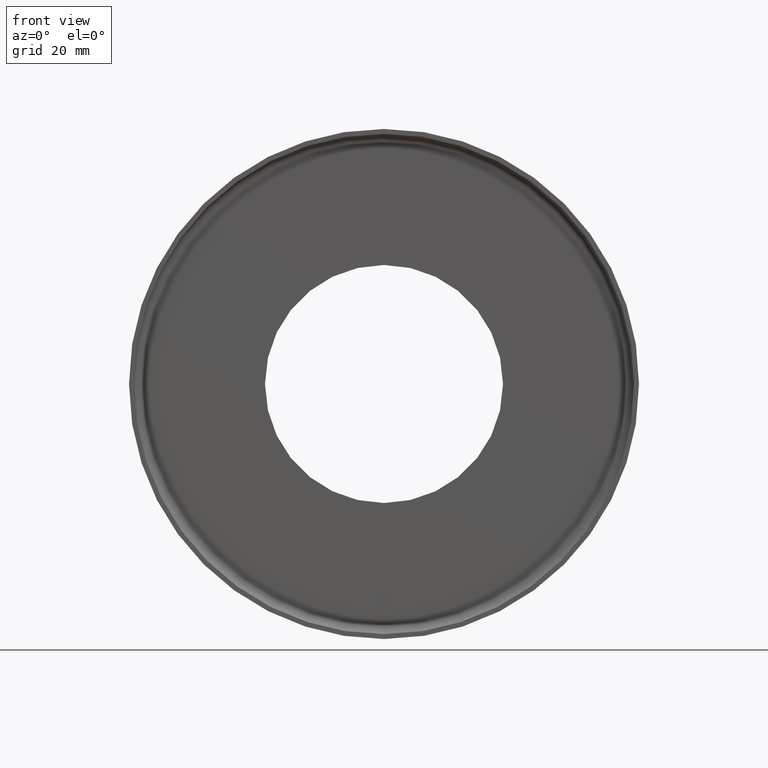
[diagram: clean part render]
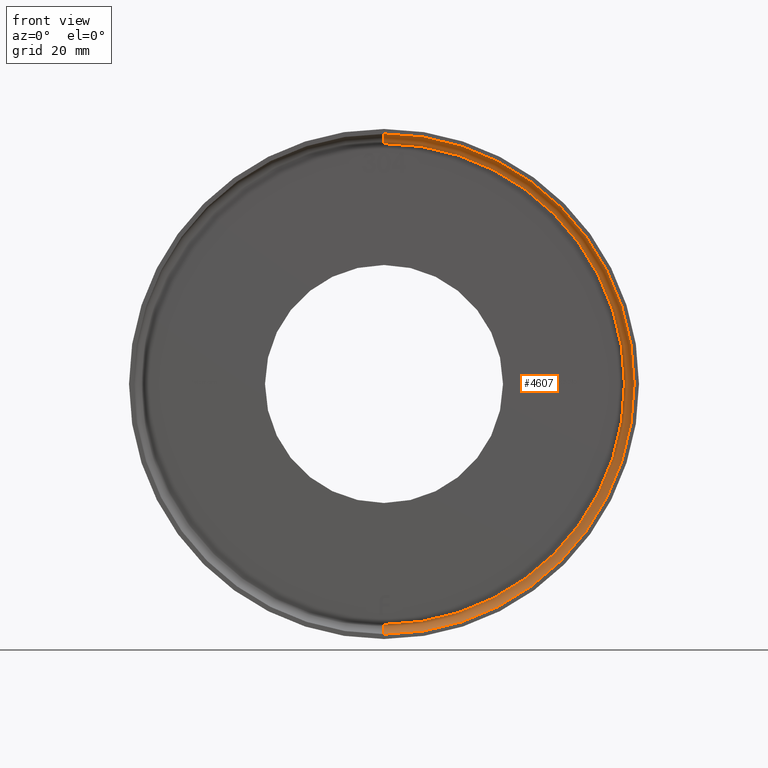
[diagram: same view with one face highlighted and labeled with its STEP entity id]
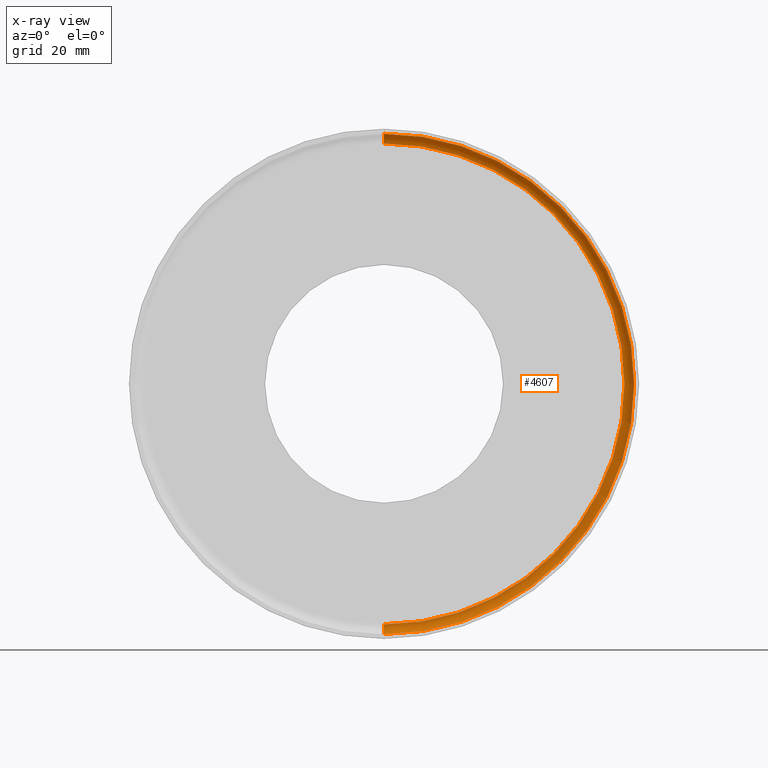
[diagram: x-ray of the same camera — body ghosted, the highlighted face saturated]
A machine part, front view. The second image highlights one B-rep face of the part: STEP entity #4607.
The next image is the same camera in x-ray: the body ghosted, the highlighted face saturated — about 0% of this face is hidden behind the body in this view.
In plain terms, the highlighted toroidal blend (fillet) surface has major radius 49.5 mm and minor (blend) radius 2 mm.
Its self-contained STEP definition (entity closure, byte-faithful):
#1361 = CARTESIAN_POINT ( 'NONE',  ( 0.000000000000000000, 22.00000000000000355, -51.50000000000000711 ) ) ;
#1422 = CARTESIAN_POINT ( 'NONE',  ( 0.000000000000000000, 22.00000000000000355, -49.50000000000000000 ) ) ;
#1424 = CARTESIAN_POINT ( 'NONE',  ( 6.062001655779398511E-15, 22.00000000000000355, 49.50000000000000000 ) ) ;
#2255 = DIRECTION ( 'NONE',  ( -0.000000000000000000, -1.000000000000000000, -0.000000000000000000 ) ) ;
#2647 = ORIENTED_EDGE ( 'NONE', *, *, #12802, .T. ) ;
#2708 = CARTESIAN_POINT ( 'NONE',  ( 6.306931015608869596E-15, 22.00000000000000355, 51.50000000000000711 ) ) ;
#2738 = EDGE_LOOP ( 'NONE', ( #7969, #12139, #10090, #2647 ) ) ;
#2918 = AXIS2_PLACEMENT_3D ( 'NONE', #1422, #6487, #10335 ) ;
#3621 = DIRECTION ( 'NONE',  ( 0.000000000000000000, 0.000000000000000000, -1.000000000000000000 ) ) ;
#4348 = CIRCLE ( 'NONE', #12000, 2.000000000000001776 ) ;
#4607 = ADVANCED_FACE ( 'NONE', ( #15314 ), #9830, .F. ) ;
#5337 = CIRCLE ( 'NONE', #15689, 49.50000000000000000 ) ;
#6228 = CARTESIAN_POINT ( 'NONE',  ( 6.184466335694133659E-15, 24.00000000000000000, 49.50000000000000000 ) ) ;
#6432 = DIRECTION ( 'NONE',  ( 1.000000000000000000, 0.000000000000000000, -1.224646799147353207E-16 ) ) ;
#6487 = DIRECTION ( 'NONE',  ( -1.000000000000000000, 0.000000000000000000, 0.000000000000000000 ) ) ;
#7276 = EDGE_CURVE ( 'NONE', #8206, #9510, #7809, .T. ) ;
#7345 = CARTESIAN_POINT ( 'NONE',  ( 0.000000000000000000, 22.00000000000000355, 0.000000000000000000 ) ) ;
#7809 = CIRCLE ( 'NONE', #2918, 2.000000000000001776 ) ;
#7969 = ORIENTED_EDGE ( 'NONE', *, *, #16229, .F. ) ;
#7971 = CARTESIAN_POINT ( 'NONE',  ( 0.000000000000000000, 24.00000000000000000, -49.50000000000000000 ) ) ;
#8206 = VERTEX_POINT ( 'NONE', #7971 ) ;
#8372 = AXIS2_PLACEMENT_3D ( 'NONE', #9447, #11779, #9507 ) ;
#8499 = VERTEX_POINT ( 'NONE', #2708 ) ;
#8613 = DIRECTION ( 'NONE',  ( 0.000000000000000000, 0.000000000000000000, -1.000000000000000000 ) ) ;
#9447 = CARTESIAN_POINT ( 'NONE',  ( 0.000000000000000000, 22.00000000000000355, 0.000000000000000000 ) ) ;
#9507 = DIRECTION ( 'NONE',  ( 0.000000000000000000, 0.000000000000000000, -1.000000000000000000 ) ) ;
#9510 = VERTEX_POINT ( 'NONE', #1361 ) ;
#9830 = TOROIDAL_SURFACE ( 'NONE', #8372, 49.50000000000000000, 2.000000000000000000 ) ;
#10090 = ORIENTED_EDGE ( 'NONE', *, *, #7276, .T. ) ;
#10307 = CARTESIAN_POINT ( 'NONE',  ( 0.000000000000000000, 24.00000000000000000, 0.000000000000000000 ) ) ;
#10335 = DIRECTION ( 'NONE',  ( 0.000000000000000000, 0.000000000000000000, 1.000000000000000000 ) ) ;
#11779 = DIRECTION ( 'NONE',  ( -0.000000000000000000, -1.000000000000000000, -0.000000000000000000 ) ) ;
#12000 = AXIS2_PLACEMENT_3D ( 'NONE', #1424, #6432, #12743 ) ;
#12139 = ORIENTED_EDGE ( 'NONE', *, *, #15707, .F. ) ;
#12618 = CIRCLE ( 'NONE', #15461, 51.50000000000000711 ) ;
#12743 = DIRECTION ( 'NONE',  ( -1.224646799147353454E-16, 0.000000000000000000, -1.000000000000000000 ) ) ;
#12802 = EDGE_CURVE ( 'NONE', #9510, #8499, #12618, .T. ) ;
#13910 = DIRECTION ( 'NONE',  ( -0.000000000000000000, -1.000000000000000000, -0.000000000000000000 ) ) ;
#13923 = VERTEX_POINT ( 'NONE', #6228 ) ;
#15314 = FACE_OUTER_BOUND ( 'NONE', #2738, .T. ) ;
#15461 = AXIS2_PLACEMENT_3D ( 'NONE', #7345, #2255, #3621 ) ;
#15689 = AXIS2_PLACEMENT_3D ( 'NONE', #10307, #13910, #8613 ) ;
#15707 = EDGE_CURVE ( 'NONE', #8206, #13923, #5337, .T. ) ;
#16229 = EDGE_CURVE ( 'NONE', #13923, #8499, #4348, .T. ) ;